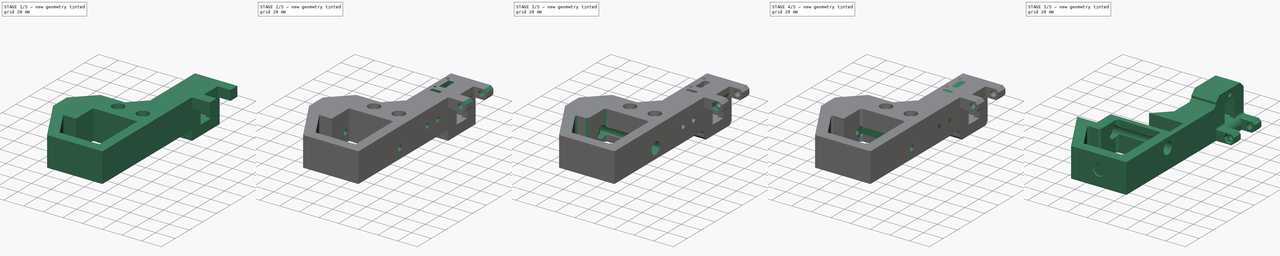
[diagram: build sequence overview — one tinted view per stage of 5, left to right]
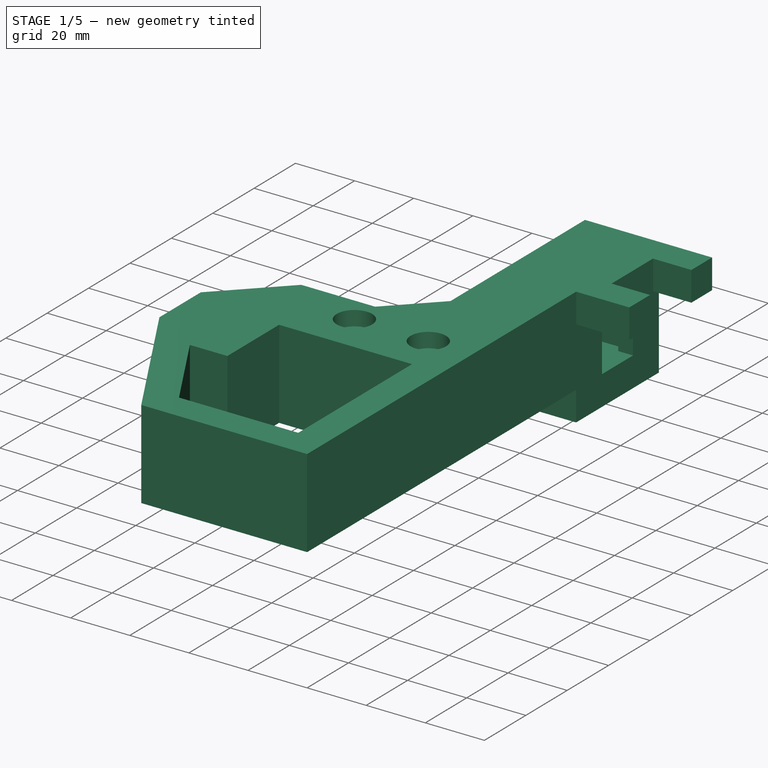
[diagram: stage 1 of 5 — iso view after this stage's code; geometry added in this stage tinted green]
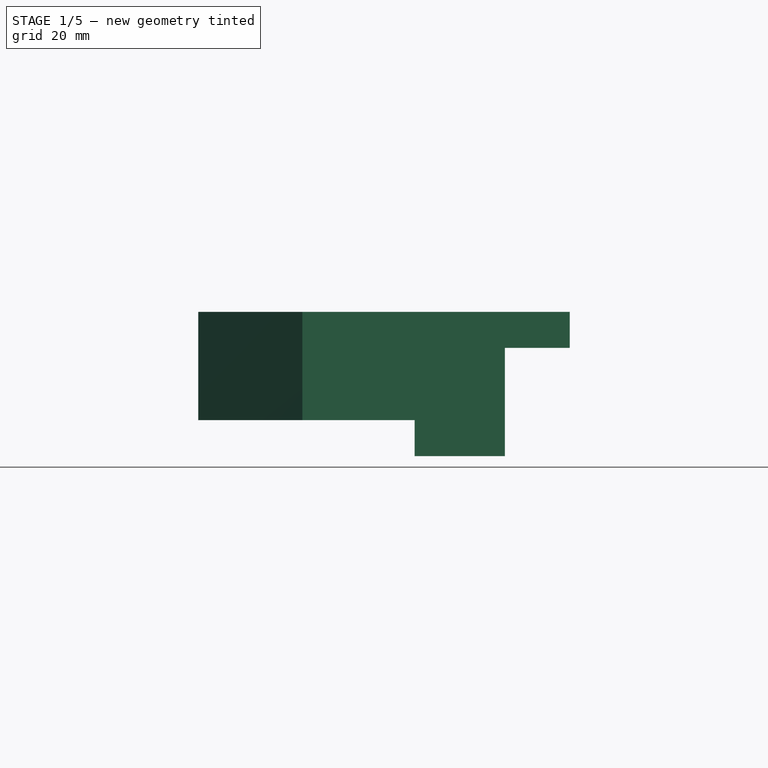
[diagram: stage 1 of 5 — front view after this stage's code; geometry added in this stage tinted green]
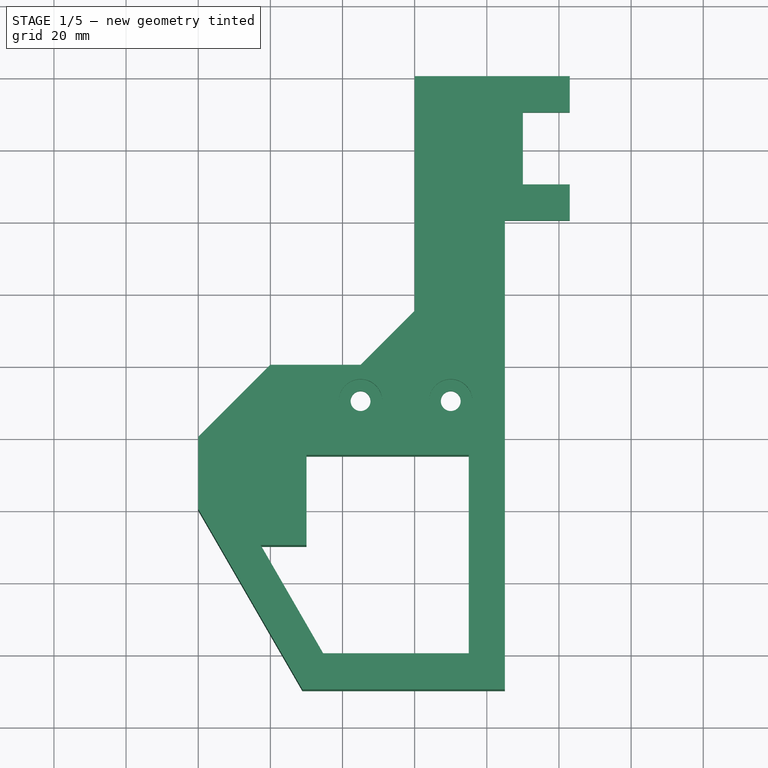
[diagram: stage 1 of 5 — top view after this stage's code; geometry added in this stage tinted green]
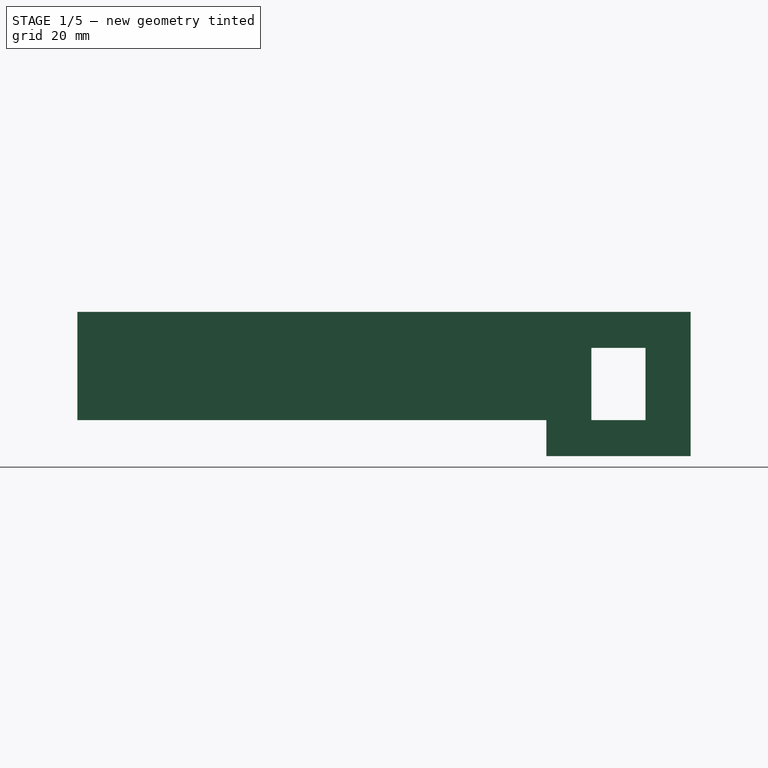
[diagram: stage 1 of 5 — right view after this stage's code; geometry added in this stage tinted green]
FCSTD DOCUMENT  (FreeCAD 0.20R29603 (Git))
Label: front-right-leg
License: All rights reserved
LicenseURL: http://en.wikipedia.org/wiki/All_rights_reserved
objects: Sketcher::SketchObject×25, PartDesign::Pocket×22, PartDesign::Plane×15, PartDesign::Chamfer×6, PartDesign::Pad×5, PartDesign::Fillet×5, PartDesign::Mirrored×1, PartDesign::Body×1
note: 118 computed .brp shape members not serialized (recipe doc carries the construction recipe); baked Part::Feature solids carry a one-line shape summary decoded from their .brp

FEATURE [Sketcher::SketchObject] Sketch
  FullyConstrained = true
  MapMode = 5
  Support = -> [XY_Plane]
  sketch-geometry (24):
    g0: LineSegment StartX=0 StartY=0 StartZ=0 EndX=20 EndY=20 EndZ=0
    g1: LineSegment StartX=85 StartY=60 StartZ=0 EndX=85 EndY=-70 EndZ=0
    g2: LineSegment StartX=85 StartY=-70 StartZ=0 EndX=28.8675 EndY=-70 EndZ=0
    g3: LineSegment StartX=28.8675 StartY=-70 StartZ=0 EndX=0 EndY=-20 EndZ=0
    g4: LineSegment StartX=0 StartY=-20 StartZ=0 EndX=0 EndY=0 EndZ=0
    g5: LineSegment StartX=17.3205 StartY=-30 StartZ=0 EndX=34.641 EndY=-60 EndZ=0
    g6: LineSegment StartX=34.641 StartY=-60 StartZ=0 EndX=75 EndY=-60 EndZ=0
    g7: LineSegment StartX=75 StartY=-60 StartZ=0 EndX=75 EndY=-5 EndZ=0
    g8: LineSegment StartX=60 StartY=35 StartZ=0 EndX=60 EndY=100 EndZ=0
    g9: LineSegment StartX=60 StartY=100 StartZ=0 EndX=103 EndY=100 EndZ=0
    g10: LineSegment StartX=103 StartY=100 StartZ=0 EndX=103 EndY=90 EndZ=0
    g11: LineSegment StartX=103 StartY=90 StartZ=0 EndX=90 EndY=90 EndZ=0
    g12: LineSegment StartX=90 StartY=90 StartZ=0 EndX=90 EndY=70 EndZ=0
    g13: LineSegment StartX=90 StartY=70 StartZ=0 EndX=103 EndY=70 EndZ=0
    g14: LineSegment StartX=103 StartY=70 StartZ=0 EndX=103 EndY=60 EndZ=0
    g15: LineSegment StartX=103 StartY=60 StartZ=0 EndX=85 EndY=60 EndZ=0
    g16: Circle CenterX=70 CenterY=10 CenterZ=0 NormalX=0 NormalY=0 NormalZ=1 AngleXU=0 Radius=2.75
    g17: Circle CenterX=45 CenterY=10 CenterZ=0 NormalX=0 NormalY=0 NormalZ=1 AngleXU=0 Radius=2.75
    g18: LineSegment StartX=85 StartY=10 StartZ=0 EndX=10 EndY=10 EndZ=0
    g19: LineSegment StartX=17.3205 StartY=-30 StartZ=0 EndX=30 EndY=-30 EndZ=0
    g20: LineSegment StartX=30 StartY=-30 StartZ=0 EndX=30 EndY=-5 EndZ=0
    g21: LineSegment StartX=30 StartY=-5 StartZ=0 EndX=75 EndY=-5 EndZ=0
    g22: LineSegment StartX=20 StartY=20 StartZ=0 EndX=45 EndY=20 EndZ=0
    g23: LineSegment StartX=45 StartY=20 StartZ=0 EndX=60 EndY=35 EndZ=0
  constraints (72):
    c: Coincident(g-1,g0)
    c: Coincident(g1,g2)
    c: Coincident(g2,g3)
    c: Coincident(g3,g4)
    c: Coincident(g4,g0)
    c: Vertical(g4)
    c: Vertical(g1)
    c: Horizontal(g2)
    c: DistanceY(g4,g4) = 20
    c: DistanceY(g2,g3) = 50
    c: Angle(g3,g4) = 2.61799
    c: DistanceX(g0,g1) = 85
    c: Angle(g4,g0) = 2.35619
    c: Coincident(g5,g6)
    c: Horizontal(g6)
    c: Coincident(g6,g7)
    c: Vertical(g7)
    c: Parallel(g5,g3)
    c: Distance(g5,g3) = 10
    c: Distance(g6,g2) = 10
    c: Distance(g7,g1) = 10
    c: Vertical(g8)
    c: Coincident(g8,g9)
    c: Horizontal(g9)
    c: Coincident(g9,g10)
    c: Vertical(g10)
    c: Coincident(g10,g11)
    c: Horizontal(g11)
    c: Coincident(g11,g12)
    c: Vertical(g12)
    c: Coincident(g12,g13)
    c: Horizontal(g13)
    c: Coincident(g13,g14)
    c: Vertical(g14)
    c: Coincident(g14,g15)
    c: Horizontal(g15)
    c: PointOnObject(g13,g10)
    c: Distance(g15,g8) = 25
    c: Distance(g15) = 18
    c: Distance(g10,g13) = 20
    c: Distance(g10) = 10
    c: Distance(g14) = 10
    c: PointOnObject(g18,g1)
    c: PointOnObject(g18,g0)
    c: Horizontal(g18)
    c: Distance(g0,g18) = 10
    c: Radius(g16) = 2.75
    c: Radius(g17) = 2.75
    c: Distance(g16,g1) = 15
    c: Distance(g17,g1) = 40
    c: PointOnObject(g17,g18)
    c: PointOnObject(g16,g18)
    c: Coincident(g5,g19)
    c: Coincident(g19,g20)
    c: Vertical(g20)
    c: Coincident(g20,g21)
    c: Horizontal(g21)
    c: Coincident(g21,g7)
    c: Distance(g21) = 45
    c: Distance(g20) = 25
    c: Horizontal(g19)
    c: Distance(g0,g21) = 5
    c: Coincident(g15,g1)
    c: DistanceY(g0,g8) = 100
    c: Horizontal(g22)
    c: Coincident(g22,g23)
    c: Coincident(g0,g22)
    c: Coincident(g8,g23)
    c: Parallel(g0,g23)
    c: DistanceY(g18,g0) = 10
    c: DistanceY(g8,g1) = 25
    c: DistanceX(g0,g12) = 90
FEATURE [PartDesign::Pad] Pad
  AllowMultiFace = false
  Direction = (1,1,1)
  Length = 30
  Length2 = 100
  Profile = -> Sketch
  Refine = true
  Type = 0
FEATURE [Sketcher::SketchObject] Sketch001
  FullyConstrained = true
  MapMode = 5
  Support = -> [XY_Plane]
  sketch-geometry (8):
    g0: LineSegment StartX=60 StartY=100 StartZ=0 EndX=103 EndY=100 EndZ=0
    g1: LineSegment StartX=103 StartY=100 StartZ=0 EndX=103 EndY=90 EndZ=0
    g2: LineSegment StartX=103 StartY=90 StartZ=0 EndX=90 EndY=90 EndZ=0
    g3: LineSegment StartX=90 StartY=70 StartZ=0 EndX=103 EndY=70 EndZ=0
    g4: LineSegment StartX=103 StartY=70 StartZ=0 EndX=103 EndY=60 EndZ=0
    g5: LineSegment StartX=103 StartY=60 StartZ=0 EndX=60 EndY=60 EndZ=0
    g6: LineSegment StartX=60 StartY=60 StartZ=0 EndX=60 EndY=100 EndZ=0
    g7: LineSegment StartX=90 StartY=90 StartZ=0 EndX=90 EndY=70 EndZ=0
  constraints (24):
    c: Horizontal(g0)
    c: Coincident(g0,g1)
    c: Vertical(g1)
    c: Coincident(g1,g2)
    c: Horizontal(g2)
    c: Horizontal(g3)
    c: Coincident(g3,g4)
    c: Vertical(g4)
    c: Coincident(g4,g5)
    c: Horizontal(g5)
    c: Coincident(g5,g6)
    c: Vertical(g6)
    c: Coincident(g0,g6)
    c: PointOnObject(g0,g4)
    c: DistanceX(g-1,g0) = 60
    c: DistanceY(g6,g6) = 40
    c: DistanceX(g0,g0) = 43
    c: DistanceY(g1,g1) = 10
    c: DistanceY(g4,g4) = 10
    c: DistanceY(g-1,g5) = 60
    c: Vertical(g7)
    c: Coincident(g2,g7)
    c: Coincident(g3,g7)
    c: DistanceX(g-1,g3) = 90
FEATURE [PartDesign::Pad] Pad001
  AllowMultiFace = false
  BaseFeature = -> Pad
  Direction = (1,1,1)
  Length = 10
  Length2 = 100
  Profile = -> Sketch001
  Refine = true
  Reversed = true
  Type = 0
FEATURE [Sketcher::SketchObject] Sketch019
  FullyConstrained = true
  MapMode = 5
  Support = -> [XY_Plane]
  sketch-geometry (4):
    g0: LineSegment StartX=85 StartY=100 StartZ=0 EndX=110 EndY=100 EndZ=0
    g1: LineSegment StartX=110 StartY=100 StartZ=0 EndX=110 EndY=60 EndZ=0
    g2: LineSegment StartX=110 StartY=60 StartZ=0 EndX=85 EndY=60 EndZ=0
    g3: LineSegment StartX=85 StartY=60 StartZ=0 EndX=85 EndY=100 EndZ=0
  constraints (12):
    c: Coincident(g0,g1)
    c: Coincident(g1,g2)
    c: Coincident(g2,g3)
    c: Coincident(g3,g0)
    c: Horizontal(g0)
    c: Horizontal(g2)
    c: Vertical(g1)
    c: Vertical(g3)
    c: DistanceX(g0,g0) = 25
    c: DistanceY(g1,g1) = 40
    c: DistanceX(g-1,g2) = 85
    c: DistanceY(g-1,g2) = 60
FEATURE [PartDesign::Pocket] Pocket016
  AllowMultiFace = false
  BaseFeature = -> Pad001
  Direction = (1,1,1)
  Length = 10
  Length2 = 20
  Profile = -> Sketch019
  Type = 4
FEATURE [PartDesign::Plane] DatumPlane003  label="Datum"
  Length = 157.503
  MapMode = 5
  Placement = pos=(0,0,30) rot=(0,0,1;0rad)
  ResizeMode = 0
  Support = -> [Pocket016]
  Width = 199.503
FEATURE [Sketcher::SketchObject] Sketch002
  FullyConstrained = true
  MapMode = 5
  Placement = pos=(0,0,30) rot=(0,0,1;0rad)
  Support = -> [DatumPlane003]
  sketch-geometry (2):
    g0: Circle CenterX=45 CenterY=10 CenterZ=0 NormalX=0 NormalY=0 NormalZ=1 AngleXU=0 Radius=6
    g1: Circle CenterX=70 CenterY=10 CenterZ=0 NormalX=0 NormalY=0 NormalZ=1 AngleXU=0 Radius=6
  constraints (6):
    c: Radius(g0) = 6
    c: Radius(g1) = 6
    c: DistanceX(g-1,g0) = 45
    c: DistanceX(g-1,g1) = 70
    c: DistanceY(g-1,g0) = 10
    c: DistanceY(g-1,g1) = 10
FEATURE [PartDesign::Pocket] Pocket
  AllowMultiFace = false
  BaseFeature = -> Pocket016
  Direction = (1,1,1)
  Length = 5
  Length2 = 100
  Profile = -> Sketch002
  Refine = true
  Type = 0
FEATURE [PartDesign::Plane] DatumPlane004
  Length = 195.417
  MapMode = 5
  Placement = pos=(60,0,0) rot=(0.57735,-0.57735,-0.57735;2.0944rad)
  ResizeMode = 0
  Support = -> [Pocket]
  Width = 120.417
FEATURE [Sketcher::SketchObject] Sketch003
  FullyConstrained = true
  MapMode = 5
  Placement = pos=(60,0,0) rot=(0.57735,-0.57735,-0.57735;2.0944rad)
  Support = -> [DatumPlane004]
  sketch-geometry (4):
    g0: LineSegment StartX=-90 StartY=20 StartZ=0 EndX=-90 EndY=0 EndZ=0
    g1: LineSegment StartX=-90 StartY=0 StartZ=0 EndX=-70 EndY=0 EndZ=0
    g2: LineSegment StartX=-70 StartY=0 StartZ=0 EndX=-70 EndY=20 EndZ=0
    g3: LineSegment StartX=-70 StartY=20 StartZ=0 EndX=-90 EndY=20 EndZ=0
  constraints (12):
    c: PointOnObject(g0,g-1)
    c: Vertical(g0)
    c: Coincident(g0,g1)
    c: PointOnObject(g1,g-1)
    c: Coincident(g1,g2)
    c: Vertical(g2)
    c: Coincident(g2,g3)
    c: Coincident(g3,g0)
    c: Horizontal(g3)
    c: Distance(g0) = 20
    c: Distance(g3) = 20
    c: Distance(g1,g-1) = 70
FEATURE [PartDesign::Pocket] Pocket001
  AllowMultiFace = false
  BaseFeature = -> Pocket
  Direction = (1,1,1)
  Length = 20
  Length2 = 100
  Profile = -> Sketch003
  Refine = true
  Type = 0
FEATURE [Sketcher::SketchObject] Sketch015
  ExternalGeometry = -> [Pocket001]
  FullyConstrained = true
  MapMode = 5
  Support = -> [XY_Plane]
  sketch-geometry (7):
    g0: LineSegment StartX=80 StartY=20 StartZ=0 EndX=80 EndY=0 EndZ=0
    g1: LineSegment StartX=80 StartY=0 StartZ=0 EndX=20 EndY=0 EndZ=0
    g2: LineSegment StartX=20 StartY=0 StartZ=0 EndX=20 EndY=-20 EndZ=0
    g3: LineSegment StartX=20 StartY=-20 StartZ=0 EndX=0 EndY=-20 EndZ=0
    g4: LineSegment StartX=0 StartY=-20 StartZ=0 EndX=0 EndY=0 EndZ=0
    g5: LineSegment StartX=0 StartY=0 StartZ=0 EndX=20 EndY=20 EndZ=0
    g6: LineSegment StartX=20 StartY=20 StartZ=0 EndX=80 EndY=20 EndZ=0
  constraints (21):
    c: PointOnObject(g0,g-1)
    c: Vertical(g0)
    c: Coincident(g0,g1)
    c: PointOnObject(g1,g-1)
    c: Coincident(g1,g2)
    c: Vertical(g2)
    c: Coincident(g2,g3)
    c: PointOnObject(g3,g-2)
    c: Horizontal(g3)
    c: Coincident(g3,g4)
    c: PointOnObject(g4,g-1)
    c: Vertical(g4)
    c: Coincident(g4,g5)
    c: Coincident(g5,g6)
    c: Horizontal(g6)
    c: Coincident(g6,g0)
    c: DistanceX(g4,g0) = 80
    c: DistanceX(g3,g3) = 20
    c: DistanceY(g2,g2) = 20
    c: DistanceY(g0,g0) = 20
    c: PointOnObject(g5,g2)
FEATURE [PartDesign::Pocket] Pocket012
  AllowMultiFace = false
  BaseFeature = -> Pocket001
  Direction = (1,1,1)
  Length = 20
  Length2 = 100
  Profile = -> Sketch015
  Reversed = true
  Type = 0
FEATURE [PartDesign::Plane] DatumPlane006
  Length = 150.054
  MapMode = 5
  Placement = pos=(0,100,0) rot=(0,0.707107,0.707107;3.14159rad)
  ResizeMode = 0
  Support = -> [Pocket012]
  Width = 117.054
FEATURE [Sketcher::SketchObject] Sketch007
  FullyConstrained = true
  MapMode = 2
  Placement = pos=(0,100,0) rot=(0,0.707107,0.707107;3.14159rad)
  Support = -> [DatumPlane006]
  sketch-geometry (1):
    g0: Circle CenterX=-70 CenterY=10 CenterZ=0 NormalX=0 NormalY=0 NormalZ=1 AngleXU=0 Radius=2.75
  constraints (3):
    c: Radius(g0) = 2.75
    c: Distance(g0,g-2) = 70
    c: Distance(g0,g-1) = 10
FEATURE [PartDesign::Pocket] Pocket005  label="rail-mount-thru"
  AllowMultiFace = false
  BaseFeature = -> Pocket012
  Direction = (1,1,1)
  Length = 10
  Length2 = 100
  Profile = -> Sketch007
  Refine = true
  Type = 0
FEATURE [Sketcher::SketchObject] Sketch009
  FullyConstrained = true
  MapMode = 5
  Placement = pos=(60,0,0) rot=(0.57735,-0.57735,-0.57735;2.0944rad)
  Support = -> [DatumPlane004]
  sketch-geometry (4):
    g0: LineSegment StartX=-87.5 StartY=20 StartZ=0 EndX=-72.5 EndY=20 EndZ=0
    g1: LineSegment StartX=-72.5 StartY=20 StartZ=0 EndX=-72.5 EndY=0 EndZ=0
    g2: LineSegment StartX=-72.5 StartY=0 StartZ=0 EndX=-87.5 EndY=0 EndZ=0
    g3: LineSegment StartX=-87.5 StartY=0 StartZ=0 EndX=-87.5 EndY=20 EndZ=0
  constraints (12):
    c: Coincident(g0,g1)
    c: Coincident(g1,g2)
    c: Coincident(g2,g3)
    c: Coincident(g3,g0)
    c: Horizontal(g0)
    c: Horizontal(g2)
    c: Vertical(g1)
    c: Vertical(g3)
    c: Distance(g0,g2) = 20
    c: DistanceX(g0,g0) = 15
    c: DistanceX(g2,g-1) = 87.5
    c: PointOnObject(g1,g-1)
FEATURE [PartDesign::Pocket] Pocket007
  AllowMultiFace = false
  BaseFeature = -> Pocket005
  Direction = (1,1,1)
  Length = 25
  Length2 = 100
  Profile = -> Sketch009
  Refine = true
  Type = 0
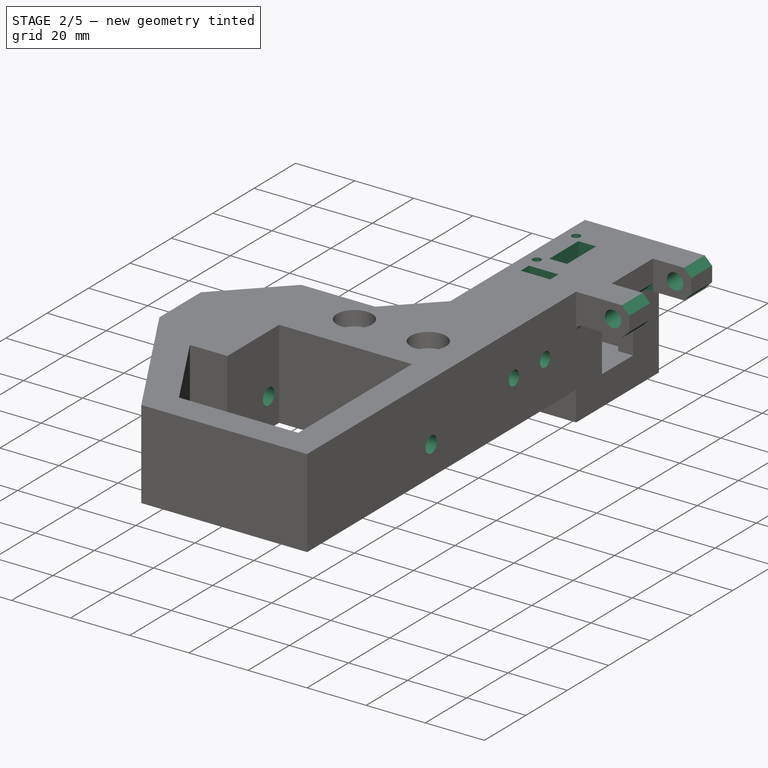
[diagram: stage 2 of 5 — iso view after this stage's code; geometry added in this stage tinted green]
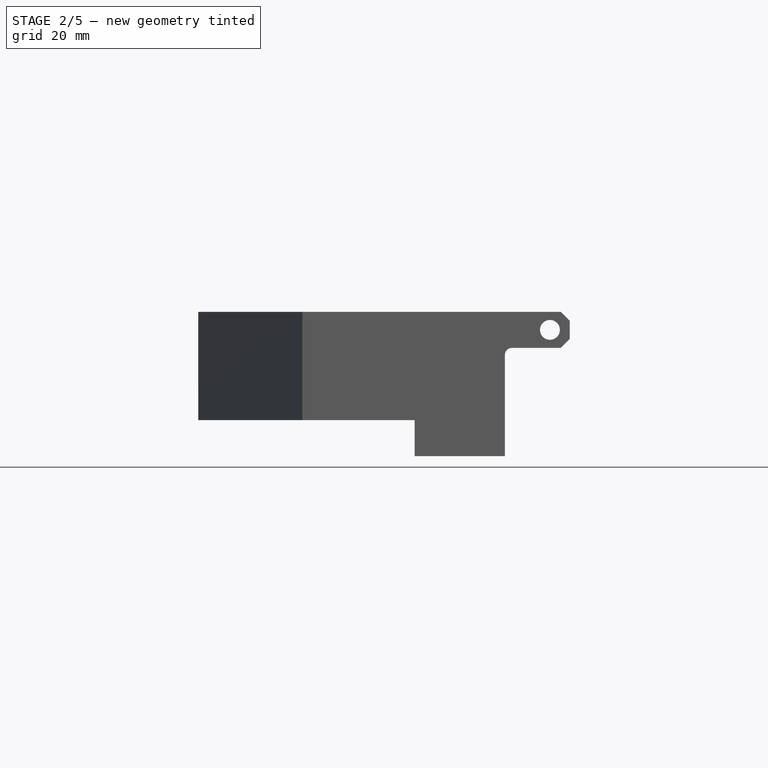
[diagram: stage 2 of 5 — front view after this stage's code; geometry added in this stage tinted green]
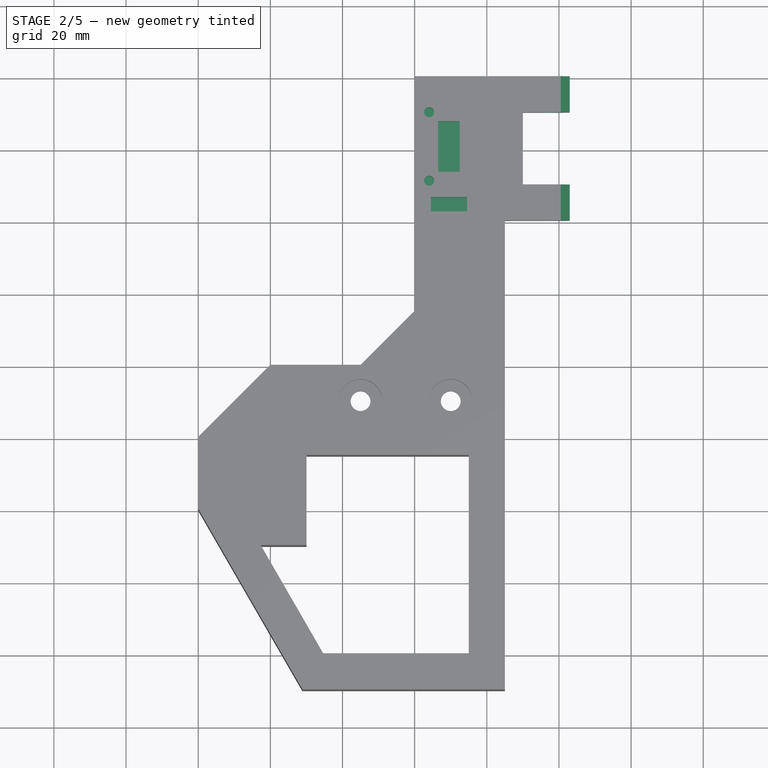
[diagram: stage 2 of 5 — top view after this stage's code; geometry added in this stage tinted green]
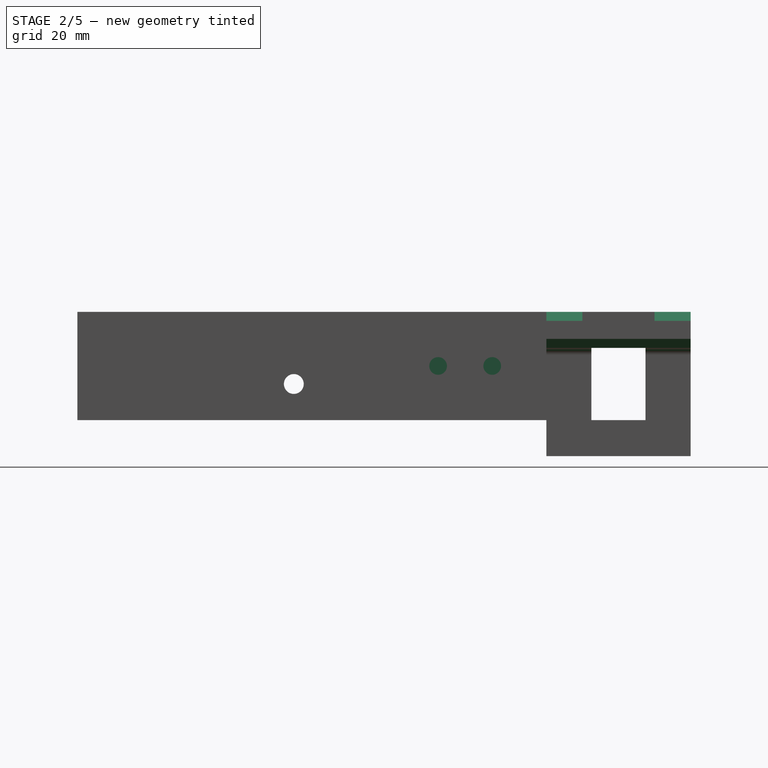
[diagram: stage 2 of 5 — right view after this stage's code; geometry added in this stage tinted green]
FEATURE [Sketcher::SketchObject] Sketch010
  FullyConstrained = true
  MapMode = 5
  Placement = pos=(0,0,0) rot=(0.57735,0.57735,0.57735;2.0944rad)
  Support = -> [YZ_Plane]
  sketch-geometry (1):
    g0: Circle CenterX=-10 CenterY=10 CenterZ=0 NormalX=0 NormalY=0 NormalZ=1 AngleXU=0 Radius=2.75
  constraints (3):
    c: Radius(g0) = 2.75
    c: DistanceY(g-1,g0) = 10
    c: DistanceX(g0,g-1) = 10
FEATURE [PartDesign::Pocket] Pocket008  label="front-rail-mount-thru"
  AllowMultiFace = false
  BaseFeature = -> Pocket007
  Direction = (1,1,1)
  Length = 85
  Length2 = 100
  Offset = 27
  Profile = -> Sketch010
  Refine = true
  Reversed = true
  Type = 0
FEATURE [PartDesign::Plane] DatumPlane005
  Length = 157.503
  MapMode = 2
  ResizeMode = 0
  Support = -> [Pocket008]
  Width = 199.503
FEATURE [Sketcher::SketchObject] Sketch011
  FullyConstrained = true
  MapMode = 5
  Support = -> [DatumPlane005]
  sketch-geometry (1):
    g0: Circle CenterX=-10 CenterY=10 CenterZ=0 NormalX=0 NormalY=0 NormalZ=1 AngleXU=0 Radius=6
  constraints (3):
    c: Radius(g0) = 6
    c: DistanceX(g0,g-1) = 10
    c: DistanceY(g-1,g0) = 10
FEATURE [PartDesign::Pocket] Pocket009  label="front-rail-mount-countersink"
  AllowMultiFace = false
  BaseFeature = -> Pocket008
  Direction = (1,1,1)
  Length = 60
  Length2 = 35
  Profile = -> Sketch011
  Refine = true
  Type = 0
FEATURE [Sketcher::SketchObject] Sketch017
  FullyConstrained = true
  MapMode = 5
  Placement = pos=(0,0,30) rot=(0,0,1;0rad)
  Support = -> [DatumPlane003]
  sketch-geometry (11):
    g0: LineSegment StartX=64.5 StartY=62.5 StartZ=0 EndX=74.5 EndY=62.5 EndZ=0
    g1: LineSegment StartX=74.5 StartY=62.5 StartZ=0 EndX=74.5 EndY=66.5 EndZ=0
    g2: LineSegment StartX=74.5 StartY=66.5 StartZ=0 EndX=64.5 EndY=66.5 EndZ=0
    g3: LineSegment StartX=64.5 StartY=66.5 StartZ=0 EndX=64.5 EndY=62.5 EndZ=0
    g4: Circle CenterX=64 CenterY=90 CenterZ=0 NormalX=0 NormalY=0 NormalZ=1 AngleXU=0 Radius=1.375
    g5: Circle CenterX=64 CenterY=71 CenterZ=0 NormalX=0 NormalY=0 NormalZ=1 AngleXU=0 Radius=1.375
    g6: LineSegment StartX=66.5 StartY=87.5 StartZ=0 EndX=72.5 EndY=87.5 EndZ=0
    g7: LineSegment StartX=72.5 StartY=87.5 StartZ=0 EndX=72.5 EndY=73.5 EndZ=0
    g8: LineSegment StartX=72.5 StartY=73.5 StartZ=0 EndX=66.5 EndY=73.5 EndZ=0
    g9: LineSegment StartX=66.5 StartY=73.5 StartZ=0 EndX=66.5 EndY=87.5 EndZ=0
    g10: LineSegment StartX=64 StartY=90 StartZ=0 EndX=64 EndY=71 EndZ=0
  constraints (32):
    c: Coincident(g0,g1)
    c: Coincident(g1,g2)
    c: Coincident(g2,g3)
    c: Coincident(g3,g0)
    c: Horizontal(g0)
    c: Horizontal(g2)
    c: Vertical(g1)
    c: Vertical(g3)
    c: Diameter(g4) = 2.75
    c: Diameter(g5) = 2.75
    c: Coincident(g6,g7)
    c: Coincident(g7,g8)
    c: Coincident(g8,g9)
    c: Coincident(g9,g6)
    c: Horizontal(g6)
    c: Horizontal(g8)
    c: Vertical(g7)
    c: Vertical(g9)
    c: DistanceY(g-1,g4) = 90
    c: DistanceX(g-1,g4) = 64
    c: Coincident(g10,g4)
    c: Coincident(g10,g5)
    c: Vertical(g10)
    c: DistanceY(g10,g10) = 19
    c: DistanceY(g3,g3) = 4
    c: DistanceX(g0,g0) = 10
    c: DistanceY(g2,g4) = 23.5
    c: DistanceX(g4,g2) = 0.5
    c: DistanceX(g4,g6) = 2.5
    c: DistanceX(g6,g6) = 6
    c: DistanceY(g6,g4) = 2.5
    c: DistanceY(g5,g8) = 2.5
FEATURE [PartDesign::Pocket] Pocket014
  AllowMultiFace = false
  BaseFeature = -> Pocket009
  Direction = (1,1,1)
  Length = 7
  Length2 = 100
  Profile = -> Sketch017
  Type = 0
FEATURE [Sketcher::SketchObject] Sketch018
  FullyConstrained = true
  MapMode = 5
  Placement = pos=(85,0,0) rot=(0.57735,0.57735,0.57735;2.0944rad)
  sketch-geometry (3):
    g0: Circle CenterX=45 CenterY=15 CenterZ=0 NormalX=0 NormalY=0 NormalZ=1 AngleXU=0 Radius=2.45
    g1: Circle CenterX=30 CenterY=15 CenterZ=0 NormalX=0 NormalY=0 NormalZ=1 AngleXU=0 Radius=2.45
    g2: LineSegment StartX=45 StartY=15 StartZ=0 EndX=30 EndY=15 EndZ=0
  constraints (8):
    c: Diameter(g0) = 4.9
    c: Diameter(g1) = 4.9
    c: Coincident(g2,g0)
    c: Coincident(g2,g1)
    c: Horizontal(g2)
    c: Distance(g2) = 15
    c: Distance(g-1,g2) = 15
    c: DistanceX(g-1,g1) = 30
FEATURE [PartDesign::Pocket] Pocket015
  AllowMultiFace = false
  BaseFeature = -> Pocket014
  Direction = (1,1,1)
  Length = 15
  Length2 = 100
  Profile = -> Sketch018
  Refine = true
  Type = 0
FEATURE [PartDesign::Plane] DatumPlane
  Length = 150.054
  MapMode = 5
  Placement = pos=(0,100,0) rot=(0,0.707107,0.707107;3.14159rad)
  ResizeMode = 0
  Support = -> [Pocket015]
  Width = 117.054
FEATURE [Sketcher::SketchObject] Sketch020
  FullyConstrained = true
  MapMode = 5
  Placement = pos=(0,100,0) rot=(0,0.707107,0.707107;3.14159rad)
  Support = -> [DatumPlane]
  sketch-geometry (1):
    g0: Circle CenterX=-97.5 CenterY=25 CenterZ=0 NormalX=0 NormalY=0 NormalZ=1 AngleXU=0 Radius=2.75
  constraints (3):
    c: Diameter(g0) = 5.5
    c: DistanceX(g0,g-1) = 97.5
    c: DistanceY(g-1,g0) = 25
FEATURE [PartDesign::Pocket] Pocket017
  AllowMultiFace = false
  BaseFeature = -> Pocket015
  Direction = (1,1,1)
  Length = 40
  Length2 = 100
  Profile = -> Sketch020
  Type = 0
FEATURE [Sketcher::SketchObject] Sketch021
  FullyConstrained = true
  MapMode = 5
  Placement = pos=(0,100,0) rot=(0,0.707107,0.707107;3.14159rad)
  Support = -> [DatumPlane]
  sketch-geometry (1):
    g0: Circle CenterX=-70 CenterY=10 CenterZ=0 NormalX=0 NormalY=0 NormalZ=1 AngleXU=0 Radius=6
  constraints (3):
    c: Diameter(g0) = 12
    c: DistanceY(g-1,g0) = 10
    c: DistanceX(g0,g-1) = 70
FEATURE [PartDesign::Pocket] Pocket018
  AllowMultiFace = false
  BaseFeature = -> Pocket017
  Direction = (1,1,1)
  Length = 5
  Length2 = 100
  Profile = -> Sketch021
  Type = 0
FEATURE [PartDesign::Fillet] Fillet001
  Base = -> Pocket018 [Edge78,Edge84]
  BaseFeature = -> Pocket018
  Radius = 2
  SupportTransform = false
  UseAllEdges = false
FEATURE [PartDesign::Chamfer] Chamfer
  Angle = 45
  Base = -> Fillet001 [Edge105,Edge49,Edge48,Edge103,Edge109]
  BaseFeature = -> Fillet001
  ChamferType = 0
  FlipDirection = false
  Size = 2.5
  Size2 = 1
  SupportTransform = false
  UseAllEdges = false
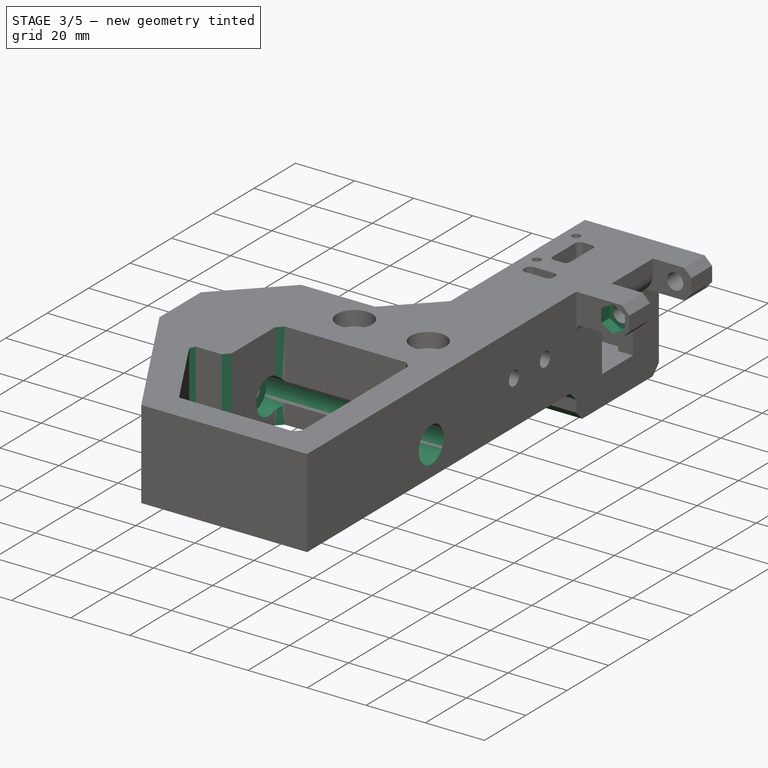
[diagram: stage 3 of 5 — iso view after this stage's code; geometry added in this stage tinted green]
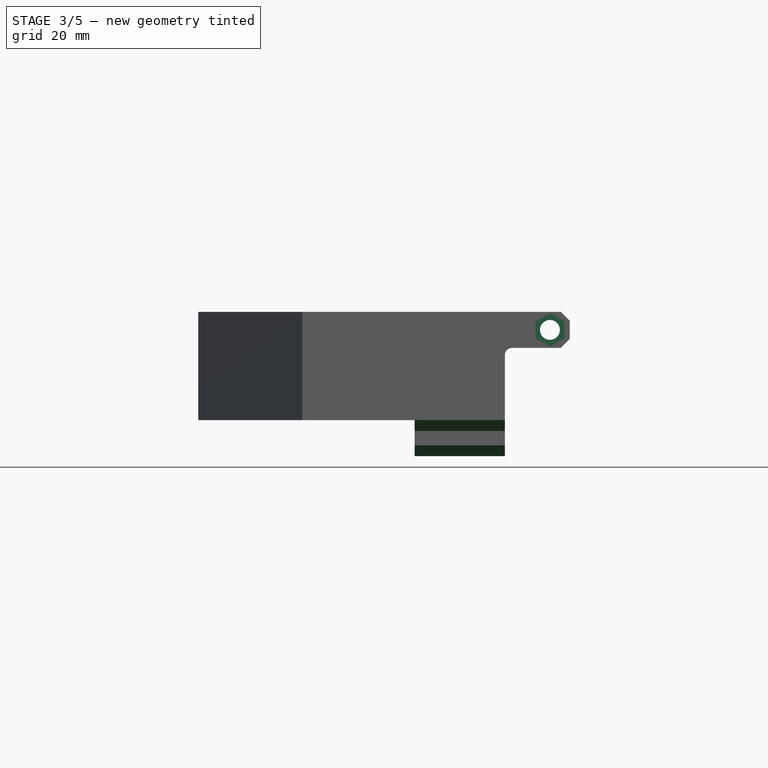
[diagram: stage 3 of 5 — front view after this stage's code; geometry added in this stage tinted green]
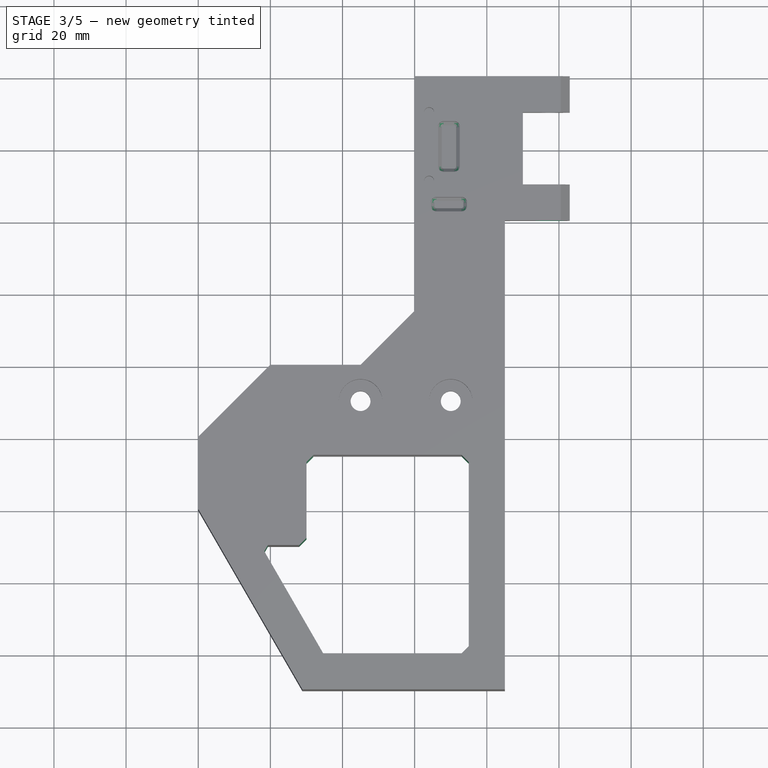
[diagram: stage 3 of 5 — top view after this stage's code; geometry added in this stage tinted green]
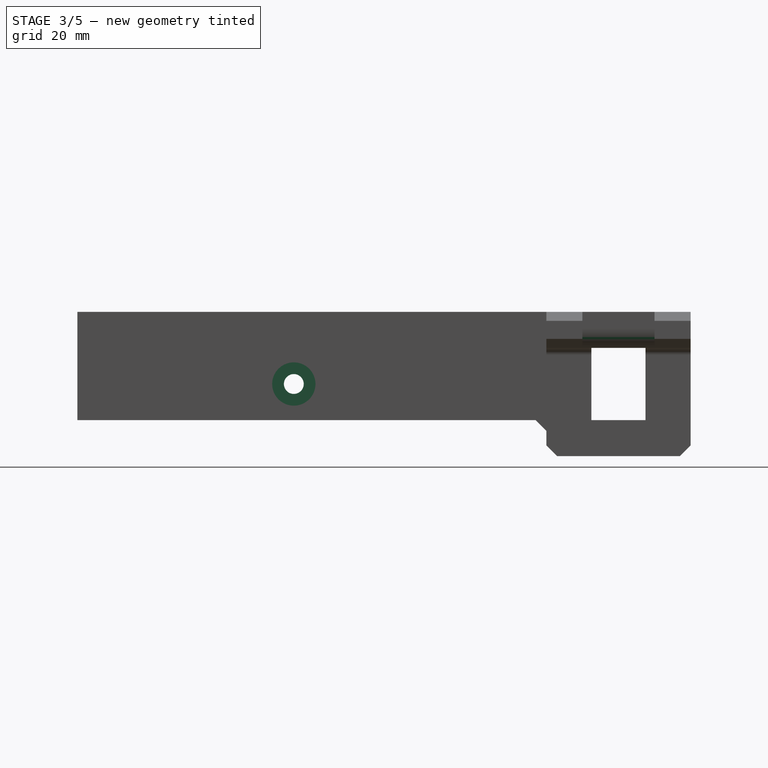
[diagram: stage 3 of 5 — right view after this stage's code; geometry added in this stage tinted green]
FEATURE [PartDesign::Fillet] Fillet
  Base = -> Chamfer [Edge101]
  BaseFeature = -> Chamfer
  Radius = 7
  SupportTransform = false
  UseAllEdges = false
FEATURE [PartDesign::Plane] DatumPlane007
  Length = 150.054
  MapMode = 5
  Placement = pos=(0,60,0) rot=(1,0,0;1.5708rad)
  ResizeMode = 0
  Support = -> [Fillet]
  Width = 117.054
FEATURE [Sketcher::SketchObject] Sketch022
  FullyConstrained = true
  MapMode = 5
  Placement = pos=(0,60,0) rot=(1,0,0;1.5708rad)
  Support = -> [DatumPlane007]
  sketch-geometry (7):
    g0: LineSegment StartX=101.5 StartY=22.6906 StartZ=0 EndX=101.5 EndY=27.3094 EndZ=0
    g1: LineSegment StartX=101.5 StartY=27.3094 StartZ=0 EndX=97.5 EndY=29.6188 EndZ=0
    g2: LineSegment StartX=97.5 StartY=29.6188 StartZ=0 EndX=93.5 EndY=27.3094 EndZ=0
    g3: LineSegment StartX=93.5 StartY=27.3094 StartZ=0 EndX=93.5 EndY=22.6906 EndZ=0
    g4: LineSegment StartX=93.5 StartY=22.6906 StartZ=0 EndX=97.5 EndY=20.3812 EndZ=0
    g5: LineSegment StartX=97.5 StartY=20.3812 StartZ=0 EndX=101.5 EndY=22.6906 EndZ=0
    g6: Circle CenterX=97.5 CenterY=25 CenterZ=0 NormalX=0 NormalY=0 NormalZ=1 AngleXU=0 Radius=4.6188
  constraints (17):
    c: Coincident(g0,g1)
    c: Coincident(g1,g2)
    c: Coincident(g2,g3)
    c: Coincident(g3,g4)
    c: Coincident(g4,g5)
    c: Coincident(g5,g0)
    c: Equal(g0, g1-g5) x5
    c: PointOnObject(g0,g6)
    c: PointOnObject(g1,g6)
    c: PointOnObject(g2,g6)
    c: PointOnObject(g3,g6)
    c: PointOnObject(g4,g6)
    c: PointOnObject(g5,g6)
    c: DistanceY(g-1,g6) = 25
    c: DistanceX(g-1,g6) = 97.5
    c: Vertical(g3)
    c: DistanceX(g2,g0) = 8
FEATURE [PartDesign::Pocket] Pocket019
  AllowMultiFace = false
  BaseFeature = -> Fillet
  Direction = (1,1,1)
  Length = 4
  Length2 = 100
  Profile = -> Sketch022
  Type = 0
FEATURE [PartDesign::Plane] DatumPlane008
  Length = 195.417
  MapMode = 5
  Placement = pos=(85,0,0) rot=(0.57735,0.57735,0.57735;2.0944rad)
  ResizeMode = 0
  Support = -> [Pocket019]
  Width = 120.417
FEATURE [Sketcher::SketchObject] Sketch023
  FullyConstrained = true
  MapMode = 5
  Placement = pos=(85,0,0) rot=(0.57735,0.57735,0.57735;2.0944rad)
  Support = -> [DatumPlane008]
  sketch-geometry (1):
    g0: Circle CenterX=-10 CenterY=10 CenterZ=0 NormalX=0 NormalY=0 NormalZ=1 AngleXU=0 Radius=6
  constraints (3):
    c: Diameter(g0) = 12
    c: DistanceX(g0,g-1) = 10
    c: DistanceY(g-1,g0) = 10
FEATURE [PartDesign::Pocket] Pocket020
  AllowMultiFace = false
  BaseFeature = -> Pocket019
  Direction = (1,1,1)
  Length = 60
  Length2 = 100
  Profile = -> Sketch023
  Type = 0
FEATURE [PartDesign::Chamfer] Chamfer003
  Angle = 45
  Base = -> Pocket020 [Edge151,Edge149,Edge144,Edge143,Edge155,Edge157,Edge152]
  BaseFeature = -> Pocket020
  ChamferType = 0
  FlipDirection = false
  Size = 2
  Size2 = 1
  SupportTransform = false
  UseAllEdges = false
FEATURE [PartDesign::Fillet] Fillet002
  Base = -> Chamfer003 [Edge159,Edge161,Edge156,Edge157,Edge146,Edge149,Edge147,Edge151]
  BaseFeature = -> Chamfer003
  Radius = 1.5
  SupportTransform = false
  UseAllEdges = false
FEATURE [PartDesign::Chamfer] Chamfer004
  Angle = 45
  Base = -> Fillet002 [Edge184,Edge57]
  BaseFeature = -> Fillet002
  ChamferType = 0
  FlipDirection = false
  Size = 1
  Size2 = 1
  SupportTransform = false
  UseAllEdges = false
FEATURE [PartDesign::Chamfer] Chamfer005
  Angle = 45
  Base = -> Chamfer004 [Edge107,Edge237,Edge209]
  BaseFeature = -> Chamfer004
  ChamferType = 0
  FlipDirection = false
  Size = 3
  Size2 = 1
  SupportTransform = false
  UseAllEdges = false
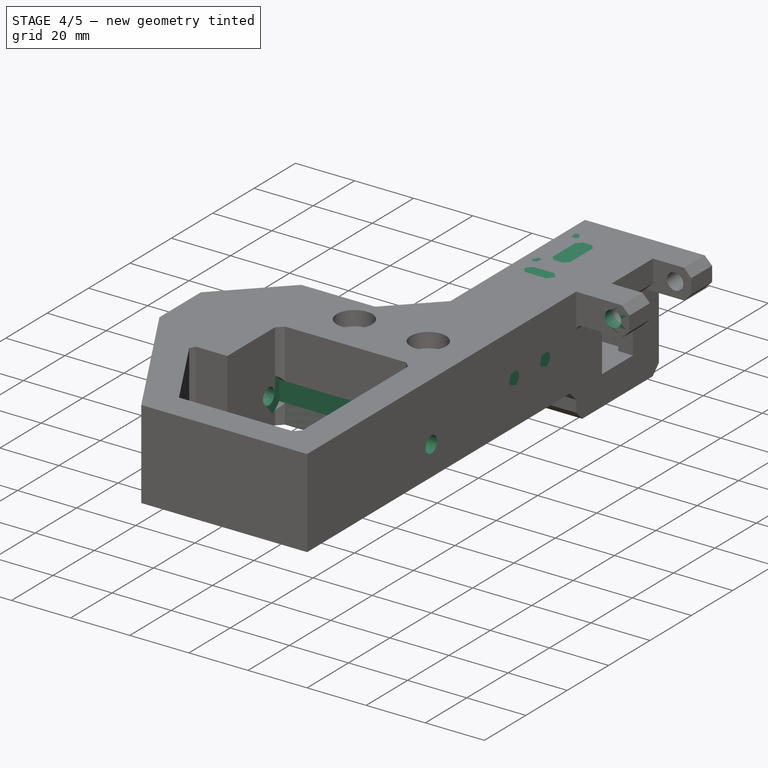
[diagram: stage 4 of 5 — iso view after this stage's code; geometry added in this stage tinted green]
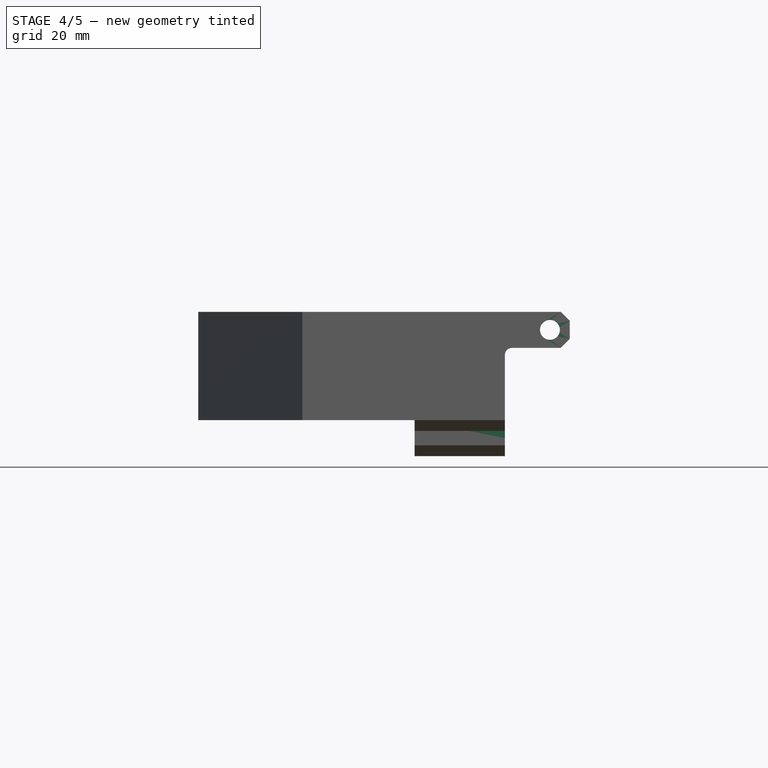
[diagram: stage 4 of 5 — front view after this stage's code; geometry added in this stage tinted green]
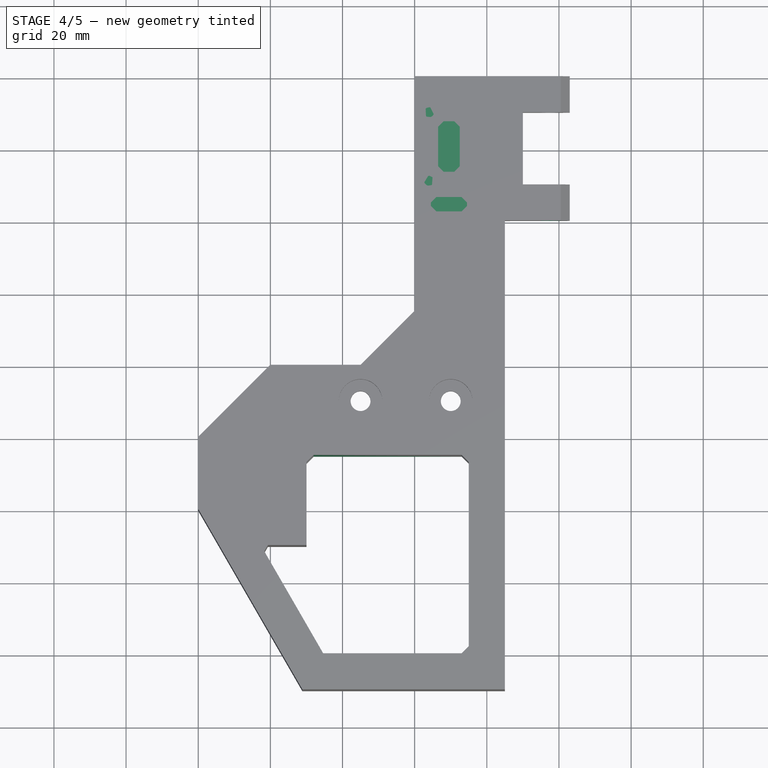
[diagram: stage 4 of 5 — top view after this stage's code; geometry added in this stage tinted green]
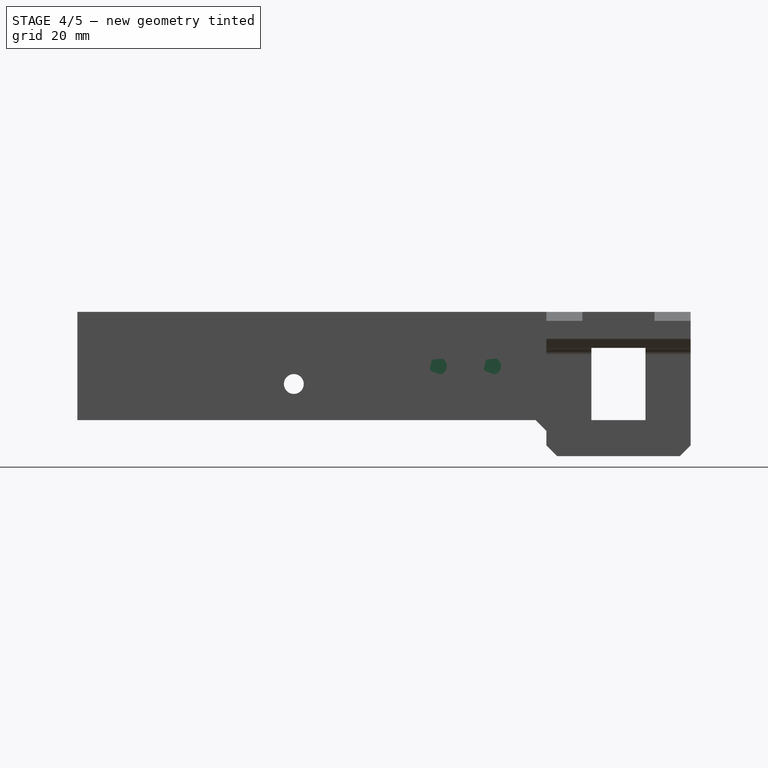
[diagram: stage 4 of 5 — right view after this stage's code; geometry added in this stage tinted green]
FEATURE [PartDesign::Chamfer] Chamfer001
  Angle = 45
  Base = -> Chamfer [Edge86,Edge121]
  BaseFeature = -> Chamfer
  ChamferType = 0
  FlipDirection = false
  Size = 5
  Size2 = 1
  SupportTransform = false
  UseAllEdges = false
FEATURE [PartDesign::Plane] DatumPlane009
  Length = 195.417
  MapMode = 5
  Placement = pos=(85,0,0) rot=(0.57735,0.57735,0.57735;2.0944rad)
  ResizeMode = 0
  Support = -> [Chamfer005]
  Width = 120.417
FEATURE [Sketcher::SketchObject] Sketch024
  FullyConstrained = true
  MapMode = 5
  Placement = pos=(85,0,0) rot=(0.57735,0.57735,0.57735;2.0944rad)
  Support = -> [DatumPlane009]
  sketch-geometry (3):
    g0: LineSegment StartX=77.5 StartY=-5 StartZ=0 EndX=82.5 EndY=-5 EndZ=0
    g1: ArcOfCircle CenterX=80 CenterY=-5 CenterZ=0 NormalX=0 NormalY=0 NormalZ=1 AngleXU=0 Radius=2.5 StartAngle=3.14159 EndAngle=6.28319
    g2: ArcOfCircle CenterX=80 CenterY=-5 CenterZ=0 NormalX=0 NormalY=0 NormalZ=1 AngleXU=0 Radius=2.5 StartAngle=0 EndAngle=3.14159
  constraints (10):
    c: Horizontal(g0)
    c: PointOnObject(g1,g0)
    c: Coincident(g1,g0)
    c: Coincident(g1,g0)
    c: DistanceX(g-1,g1) = 80
    c: Diameter(g1) = 5
    c: DistanceY(g1,g-1) = 5
    c: Coincident(g2,g1)
    c: Coincident(g2,g0)
    c: Coincident(g2,g0)
FEATURE [PartDesign::Pocket] Pocket021
  AllowMultiFace = false
  BaseFeature = -> Chamfer005
  Direction = (1,1,1)
  Length = 1.5
  Length2 = 100
  Profile = -> Sketch024
  Type = 0
FEATURE [PartDesign::Fillet] Fillet003
  Base = -> Pocket021 [Edge162]
  BaseFeature = -> Pocket021
  Radius = 1.25
  SupportTransform = false
  UseAllEdges = false
FEATURE [PartDesign::Plane] DatumPlane013
  AttachmentOffset = pos=(0,0,-10) rot=(0,0,1;0rad)
  Length = 195.417
  MapMode = 5
  Placement = pos=(75,0,0) rot=(0.57735,0.57735,0.57735;2.0944rad)
  ResizeMode = 0
  Support = -> [Fillet003]
  Width = 120.417
FEATURE [PartDesign::Pad] Pad002  label="Plug Y-Limit Switch Mounting Features"
  BaseFeature = -> Fillet003
  Direction = (1,1,1)
  Length = 9.5
  Length2 = 100
  Profile = -> Sketch017
  Reversed = true
  Type = 0
FEATURE [PartDesign::Pad] Pad003  label="Plug Front-Side M5 Umbilical Mount Holes"
  BaseFeature = -> Pad002
  Direction = (1,1,1)
  Length = 24
  Length2 = 100
  Profile = -> Sketch018
  Reversed = true
  Type = 0
FEATURE [PartDesign::Plane] DatumPlane014
  Length = 195.417
  MapMode = 5
  Placement = pos=(60,0,0) rot=(0.57735,-0.57735,-0.57735;2.0944rad)
  ResizeMode = 0
  Support = -> [Pad003]
  Width = 120.417
FEATURE [Sketcher::SketchObject] Sketch025
  ExternalGeometry = -> [Pad003]
  FullyConstrained = true
  MapMode = 5
  Placement = pos=(60,0,0) rot=(0.57735,-0.57735,-0.57735;2.0944rad)
  Support = -> [DatumPlane014]
  sketch-geometry (7):
    g0: LineSegment StartX=-90.1 StartY=-0.1 StartZ=0 EndX=-69.9 EndY=-0.1 EndZ=0
    g1: LineSegment StartX=-69.9 StartY=-0.1 StartZ=0 EndX=-69.9 EndY=20.1 EndZ=0
    g2: LineSegment StartX=-69.9 StartY=20.1 StartZ=0 EndX=-90.1 EndY=20.1 EndZ=0
    g3: LineSegment StartX=-90.1 StartY=20.1 StartZ=0 EndX=-90.1 EndY=-0.1 EndZ=0
    g4: LineSegment StartX=-90 StartY=20 StartZ=0 EndX=-90.1 EndY=20 EndZ=0
    g5: LineSegment StartX=-90 StartY=20 StartZ=0 EndX=-90 EndY=20.1 EndZ=0
    g6: LineSegment StartX=-70 StartY=0 StartZ=0 EndX=-69.9 EndY=0 EndZ=0
  constraints (21):
    c: Coincident(g0,g1)
    c: Coincident(g1,g2)
    c: Coincident(g2,g3)
    c: Coincident(g3,g0)
    c: Horizontal(g0)
    c: Horizontal(g2)
    c: Vertical(g1)
    c: Vertical(g3)
    c: Equal(g2,g1)
    c: Coincident(g4,g-4)
    c: PointOnObject(g4,g3)
    c: Horizontal(g4)
    c: Coincident(g5,g4)
    c: PointOnObject(g5,g2)
    c: Vertical(g5)
    c: Equal(g5,g4)
    c: Coincident(g6,g-6)
    c: PointOnObject(g6,g1)
    c: Horizontal(g6)
    c: Equal(g6,g5)
    c: DistanceX(g4,g4) = 0.1
FEATURE [PartDesign::Pocket] Pocket022  label="Widen top-side 2020 pocket to 20.2mm - Step #1"
  BaseFeature = -> Pad003
  Direction = (1,1,1)
  Length = 20
  Length2 = 100
  Profile = -> Sketch025
  Type = 0
FEATURE [PartDesign::Plane] DatumPlane015
  Length = 195.417
  MapMode = 5
  Placement = pos=(80,0,0) rot=(0.57735,-0.57735,-0.57735;2.0944rad)
  ResizeMode = 0
  Support = -> [Pocket022]
  Width = 120.417
FEATURE [Sketcher::SketchObject] Sketch026
  ExternalGeometry = -> [Pocket022]
  FullyConstrained = true
  MapMode = 5
  Placement = pos=(80,0,0) rot=(0.57735,-0.57735,-0.57735;2.0944rad)
  Support = -> [DatumPlane015]
  sketch-geometry (8):
    g0: LineSegment StartX=-87.5 StartY=20 StartZ=0 EndX=-72.5 EndY=20 EndZ=0
    g1: LineSegment StartX=-72.5 StartY=20 StartZ=0 EndX=-72.5 EndY=20.1 EndZ=0
    g2: LineSegment StartX=-72.5 StartY=20.1 StartZ=0 EndX=-87.5 EndY=20.1 EndZ=0
    g3: LineSegment StartX=-87.5 StartY=20.1 StartZ=0 EndX=-87.5 EndY=20 EndZ=0
    g4: LineSegment StartX=-87.5 StartY=0 StartZ=0 EndX=-72.5 EndY=0 EndZ=0
    g5: LineSegment StartX=-72.5 StartY=0 StartZ=0 EndX=-72.5 EndY=-0.1 EndZ=0
    g6: LineSegment StartX=-72.5 StartY=-0.1 StartZ=0 EndX=-87.5 EndY=-0.1 EndZ=0
    g7: LineSegment StartX=-87.5 StartY=-0.1 StartZ=0 EndX=-87.5 EndY=0 EndZ=0
  constraints (20):
    c: Coincident(g0,g1)
    c: Coincident(g1,g2)
    c: Coincident(g2,g3)
    c: Coincident(g3,g0)
    c: Horizontal(g2)
    c: Vertical(g1)
    c: Vertical(g3)
    c: Coincident(g0,g-6)
    c: PointOnObject(g1,g-7)
    c: Coincident(g0,g-5)
    c: Coincident(g4,g5)
    c: Coincident(g5,g6)
    c: Coincident(g6,g7)
    c: Coincident(g7,g4)
    c: Horizontal(g6)
    c: Vertical(g5)
    c: Vertical(g7)
    c: Coincident(g4,g-4)
    c: PointOnObject(g6,g-8)
    c: Coincident(g4,g-3)
FEATURE [PartDesign::Pocket] Pocket023  label="Widen top-side 2020 pocket to 20.2mm - Step #2"
  BaseFeature = -> Pocket022
  Direction = (1,1,1)
  Length = 10
  Length2 = 100
  Profile = -> Sketch026
  Type = 0
FEATURE [PartDesign::Fillet] Fillet004
  Base = -> Pocket023 [Edge287,Edge237,Edge272]
  BaseFeature = -> Pocket023
  Radius = 0.25
  SupportTransform = false
  UseAllEdges = false
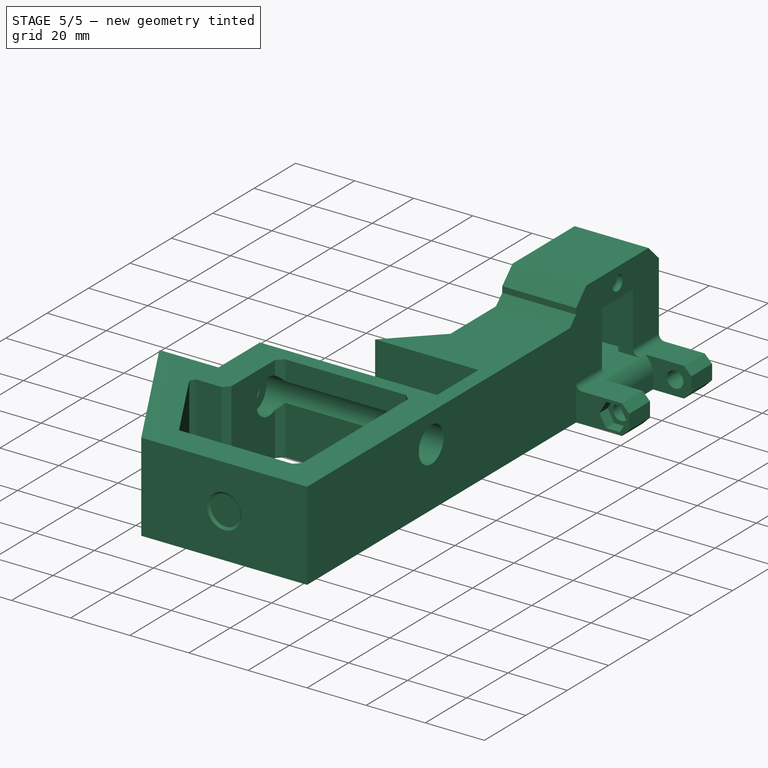
[diagram: stage 5 of 5 — iso view after this stage's code; geometry added in this stage tinted green]
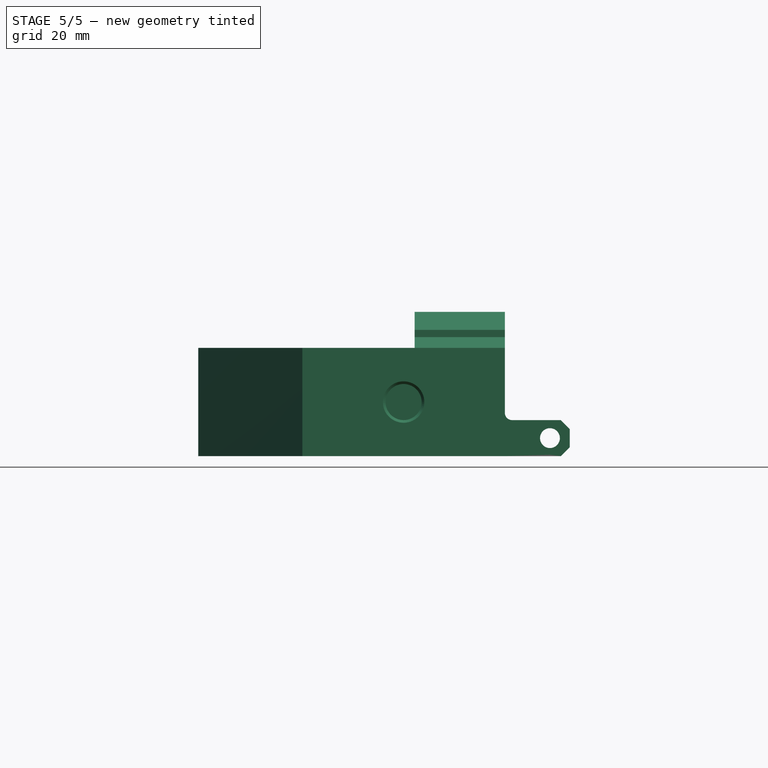
[diagram: stage 5 of 5 — front view after this stage's code; geometry added in this stage tinted green]
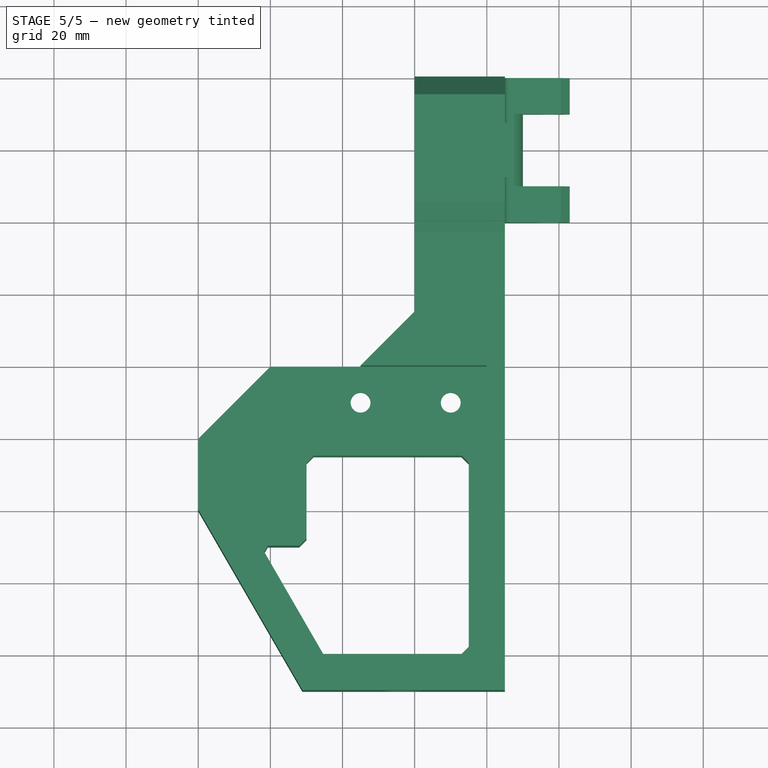
[diagram: stage 5 of 5 — top view after this stage's code; geometry added in this stage tinted green]
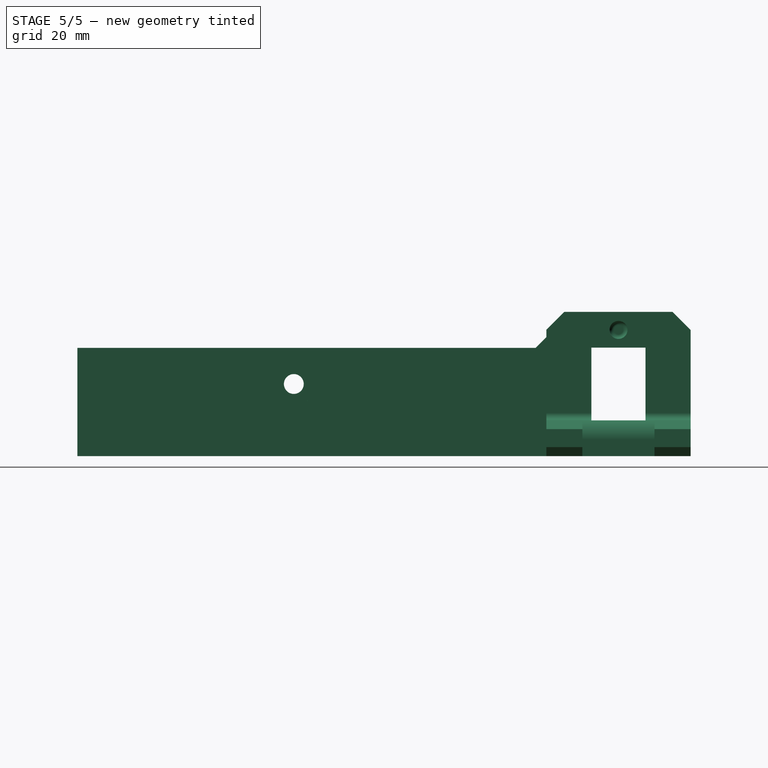
[diagram: stage 5 of 5 — right view after this stage's code; geometry added in this stage tinted green]
FEATURE [PartDesign::Plane] DatumPlane012  label="PrintPlaneOG"
  Length = 157.503
  MapMode = 5
  Placement = pos=(0,0,30) rot=(0,0,1;0rad)
  ResizeMode = 0
  Support = -> [Fillet004]
  Width = 199.503
FEATURE [PartDesign::Mirrored] Mirrored
  BaseFeature = -> Fillet004
  MirrorPlane = -> DatumPlane012
  Originals = -> [Pad,Pad001,Pocket016,Pocket,Pocket001,Pocket012,Pocket005,Pocket007,Pocket008,Pocket009,Pocket014,Pocket015,Pocket017,Pocket018,Fillet001,Chamfer,Chamfer001,Fillet,Pocket019,Pocket020,Chamfer003,Fillet002,Chamfer004,Chamfer005,Pocket021,Fillet003,Pad002,Pad003,Pocket022,Pocket023,Fillet004]
FEATURE [Sketcher::SketchObject] Sketch027
  FullyConstrained = false
  MapMode = 5
  Placement = pos=(0,0,30) rot=(0,0,1;0rad)
  Support = -> [DatumPlane012]
  sketch-geometry (4):
    g0: LineSegment StartX=-25.8032 StartY=-97.9912 StartZ=0 EndX=158.058 EndY=-97.9912 EndZ=0
    g1: LineSegment StartX=158.058 StartY=-97.9912 StartZ=0 EndX=158.058 EndY=130.099 EndZ=0
    g2: LineSegment StartX=158.058 StartY=130.099 StartZ=0 EndX=-25.8032 EndY=130.099 EndZ=0
    g3: LineSegment StartX=-25.8032 StartY=130.099 StartZ=0 EndX=-25.8032 EndY=-97.9912 EndZ=0
  constraints (8):
    c: Coincident(g0,g1)
    c: Coincident(g1,g2)
    c: Coincident(g2,g3)
    c: Coincident(g3,g0)
    c: Horizontal(g0)
    c: Horizontal(g2)
    c: Vertical(g1)
    c: Vertical(g3)
FEATURE [PartDesign::Pocket] Pocket024
  BaseFeature = -> Mirrored
  Direction = (1,1,1)
  Length = 5
  Length2 = 100
  Profile = -> Sketch027
  Type = 1
FEATURE [PartDesign::Plane] DatumPlane016  label="PrintPlane"
  Length = 157.503
  MapMode = 5
  Placement = pos=(0,0,30) rot=(1,0,0;3.14159rad)
  ResizeMode = 0
  Support = -> [Pocket024]
  Width = 199.503
FEATURE [PartDesign::Plane] DatumPlane017
  Length = 157.503
  MapMode = 5
  Placement = pos=(0,0,35) rot=(1,0,0;3.14159rad)
  ResizeMode = 0
  Support = -> [Pocket024]
  Width = 199.503
FEATURE [Sketcher::SketchObject] Sketch028
  ExternalGeometry = -> [Pocket024]
  FullyConstrained = true
  MapMode = 5
  Placement = pos=(0,0,35) rot=(1,0,0;3.14159rad)
  Support = -> [DatumPlane017]
  sketch-geometry (10):
    g0: LineSegment StartX=47.75 StartY=-7.25 StartZ=0 EndX=42.25 EndY=-7.25 EndZ=0
    g1: LineSegment StartX=42.25 StartY=-7.25 StartZ=0 EndX=42.25 EndY=-12.75 EndZ=0
    g2: LineSegment StartX=42.25 StartY=-12.75 StartZ=0 EndX=47.75 EndY=-12.75 EndZ=0
    g3: LineSegment StartX=47.75 StartY=-12.75 StartZ=0 EndX=47.75 EndY=-7.25 EndZ=0
    g4: Circle CenterX=45 CenterY=-10 CenterZ=0 NormalX=0 NormalY=0 NormalZ=1 AngleXU=0 Radius=3.88909
    g5: LineSegment StartX=72.75 StartY=-7.25 StartZ=0 EndX=67.25 EndY=-7.25 EndZ=0
    g6: LineSegment StartX=67.25 StartY=-7.25 StartZ=0 EndX=67.25 EndY=-12.75 EndZ=0
    g7: LineSegment StartX=67.25 StartY=-12.75 StartZ=0 EndX=72.75 EndY=-12.75 EndZ=0
    g8: LineSegment StartX=72.75 StartY=-12.75 StartZ=0 EndX=72.75 EndY=-7.25 EndZ=0
    g9: Circle CenterX=70 CenterY=-10 CenterZ=0 NormalX=0 NormalY=0 NormalZ=1 AngleXU=0 Radius=3.88909
  constraints (28):
    c: Coincident(g0,g1)
    c: Coincident(g1,g2)
    c: Coincident(g2,g3)
    c: Coincident(g3,g0)
    c: Equal(g0,g1)
    c: Equal(g0,g2)
    c: Equal(g0,g3)
    c: PointOnObject(g0,g4)
    c: PointOnObject(g1,g4)
    c: PointOnObject(g2,g4)
    c: PointOnObject(g3,g4)
    c: Coincident(g4,g-4)
    c: Coincident(g5,g6)
    c: Coincident(g6,g7)
    c: Coincident(g7,g8)
    c: Coincident(g8,g5)
    c: Equal(g5,g6)
    c: Equal(g5,g7)
    c: Equal(g5,g8)
    c: PointOnObject(g5,g9)
    c: PointOnObject(g6,g9)
    c: PointOnObject(g7,g9)
    c: PointOnObject(g8,g9)
    c: Coincident(g9,g-6)
    c: Horizontal(g5)
    c: Horizontal(g0)
    c: Tangent(g-3,g0)
    c: Tangent(g5,g-5)
FEATURE [PartDesign::Pocket] Pocket025  label="Mid-Air Hole Cleanup - Step #1"
  BaseFeature = -> Pocket024
  Direction = (1,1,1)
  Length = 0.8
  Length2 = 100
  Profile = -> Sketch028
  Type = 0
FEATURE [Sketcher::SketchObject] Sketch029
  ExternalGeometry = -> [Pocket025]
  FullyConstrained = true
  MapMode = 5
  Placement = pos=(0,0,35) rot=(1,0,0;3.14159rad)
  Support = -> [DatumPlane017]
  sketch-geometry (14):
    g0: LineSegment StartX=42.25 StartY=-4.66732 StartZ=0 EndX=42.25 EndY=-15.3327 EndZ=0
    g1: LineSegment StartX=42.25 StartY=-15.3327 StartZ=0 EndX=47.75 EndY=-15.3327 EndZ=0
    g2: LineSegment StartX=47.75 StartY=-15.3327 StartZ=0 EndX=47.75 EndY=-4.66732 EndZ=0
    g3: LineSegment StartX=47.75 StartY=-4.66732 StartZ=0 EndX=42.25 EndY=-4.66732 EndZ=0
    g4: LineSegment StartX=42.25 StartY=-4.66732 StartZ=0 EndX=47.75 EndY=-15.3327 EndZ=0
    g5: ArcOfCircle CenterX=45 CenterY=-10 CenterZ=0 NormalX=0 NormalY=0 NormalZ=1 AngleXU=0 Radius=6 StartAngle=1.09468 EndAngle=2.04692
    g6: ArcOfCircle CenterX=45 CenterY=-10 CenterZ=0 NormalX=0 NormalY=0 NormalZ=1 AngleXU=0 Radius=6 StartAngle=4.23627 EndAngle=5.18851
    g7: LineSegment StartX=67.25 StartY=-4.66732 StartZ=0 EndX=67.25 EndY=-15.3327 EndZ=0
    g8: LineSegment StartX=67.25 StartY=-15.3327 StartZ=0 EndX=72.75 EndY=-15.3327 EndZ=0
    g9: LineSegment StartX=72.75 StartY=-15.3327 StartZ=0 EndX=72.75 EndY=-4.66732 EndZ=0
    g10: LineSegment StartX=72.75 StartY=-4.66732 StartZ=0 EndX=67.25 EndY=-4.66732 EndZ=0
    g11: LineSegment StartX=67.25 StartY=-4.66732 StartZ=0 EndX=72.75 EndY=-15.3327 EndZ=0
    g12: ArcOfCircle CenterX=70 CenterY=-10 CenterZ=0 NormalX=0 NormalY=0 NormalZ=1 AngleXU=0 Radius=6 StartAngle=1.09468 EndAngle=2.04692
    g13: ArcOfCircle CenterX=70 CenterY=-10 CenterZ=0 NormalX=0 NormalY=0 NormalZ=1 AngleXU=0 Radius=6 StartAngle=4.23627 EndAngle=5.18851
  constraints (35):
    c: Coincident(g0,g1)
    c: Coincident(g1,g2)
    c: Coincident(g2,g3)
    c: Coincident(g3,g0)
    c: Coincident(g4,g0)
    c: Coincident(g4,g1)
    c: Symmetric(g4,g4,g-3)
    c: Vertical(g0)
    c: Horizontal(g3)
    c: PointOnObject(g-6,g0)
    c: PointOnObject(g4,g-3)
    c: Coincident(g5,g3)
    c: Coincident(g3,g5)
    c: Coincident(g-3,g5)
    c: Coincident(g6,g1)
    c: Coincident(g6,g1)
    c: Coincident(g6,g-3)
    c: Coincident(g7,g8)
    c: Coincident(g8,g9)
    c: Coincident(g9,g10)
    c: Coincident(g10,g7)
    c: Coincident(g11,g7)
    c: Coincident(g11,g8)
    c: Vertical(g7)
    c: Horizontal(g10)
    c: Coincident(g12,g10)
    c: Coincident(g10,g12)
    c: Coincident(g13,g8)
    c: Coincident(g13,g8)
    c: Coincident(g13,g-4)
    c: PointOnObject(g-5,g7)
    c: PointOnObject(g-10,g9)
    c: PointOnObject(g8,g-4)
    c: PointOnObject(g10,g-4)
    c: Coincident(g12,g13)
FEATURE [PartDesign::Pocket] Pocket026  label="Mid-Air Hole Cleanup - Step #2"
  BaseFeature = -> Pocket025
  Direction = (1,1,1)
  Length = 0.4
  Length2 = 100
  Profile = -> Sketch029
  Type = 0
FEATURE [Sketcher::SketchObject] Sketch030
  FullyConstrained = true
  MapMode = 5
  Placement = pos=(0,60,0) rot=(1,0,0;1.5708rad)
  Support = -> [DatumPlane007]
  sketch-geometry (7):
    g0: LineSegment StartX=101.5 StartY=32.6906 StartZ=0 EndX=101.5 EndY=37.3094 EndZ=0
    g1: LineSegment StartX=101.5 StartY=37.3094 StartZ=0 EndX=97.5 EndY=39.6188 EndZ=0
    g2: LineSegment StartX=97.5 StartY=39.6188 StartZ=0 EndX=93.5 EndY=37.3094 EndZ=0
    g3: LineSegment StartX=93.5 StartY=37.3094 StartZ=0 EndX=93.5 EndY=32.6906 EndZ=0
    g4: LineSegment StartX=93.5 StartY=32.6906 StartZ=0 EndX=97.5 EndY=30.3812 EndZ=0
    g5: LineSegment StartX=97.5 StartY=30.3812 StartZ=0 EndX=101.5 EndY=32.6906 EndZ=0
    g6: Circle CenterX=97.5 CenterY=35 CenterZ=0 NormalX=0 NormalY=0 NormalZ=1 AngleXU=0 Radius=4.6188
  constraints (17):
    c: Coincident(g0,g1)
    c: Coincident(g1,g2)
    c: Coincident(g2,g3)
    c: Coincident(g3,g4)
    c: Coincident(g4,g5)
    c: Coincident(g5,g0)
    c: Equal(g0, g1-g5) x5
    c: PointOnObject(g0,g6)
    c: PointOnObject(g1,g6)
    c: PointOnObject(g2,g6)
    c: PointOnObject(g3,g6)
    c: PointOnObject(g4,g6)
    c: PointOnObject(g5,g6)
    c: Vertical(g0)
    c: Distance(g0,g2) = 8
    c: DistanceY(g-1,g6) = 35
    c: DistanceX(g-1,g6) = 97.5
FEATURE [Sketcher::SketchObject] Sketch031
  FullyConstrained = true
  MapMode = 5
  Placement = pos=(0,60,0) rot=(1,0,0;1.5708rad)
  Support = -> [DatumPlane007]
  sketch-geometry (7):
    g0: LineSegment StartX=102.119 StartY=35 StartZ=0 EndX=99.8094 EndY=39 EndZ=0
    g1: LineSegment StartX=99.8094 StartY=39 StartZ=0 EndX=95.1906 EndY=39 EndZ=0
    g2: LineSegment StartX=95.1906 StartY=39 StartZ=0 EndX=92.8812 EndY=35 EndZ=0
    g3: LineSegment StartX=92.8812 StartY=35 StartZ=0 EndX=95.1906 EndY=31 EndZ=0
    g4: LineSegment StartX=95.1906 StartY=31 StartZ=0 EndX=99.8094 EndY=31 EndZ=0
    g5: LineSegment StartX=99.8094 StartY=31 StartZ=0 EndX=102.119 EndY=35 EndZ=0
    g6: Circle CenterX=97.5 CenterY=35 CenterZ=0 NormalX=0 NormalY=0 NormalZ=1 AngleXU=0 Radius=4.6188
  constraints (17):
    c: Coincident(g0,g1)
    c: Coincident(g1,g2)
    c: Coincident(g2,g3)
    c: Coincident(g3,g4)
    c: Coincident(g4,g5)
    c: Coincident(g5,g0)
    c: Equal(g0, g1-g5) x5
    c: PointOnObject(g0,g6)
    c: PointOnObject(g1,g6)
    c: PointOnObject(g2,g6)
    c: PointOnObject(g3,g6)
    c: PointOnObject(g4,g6)
    c: PointOnObject(g5,g6)
    c: Distance(g0,g2) = 8
    c: DistanceY(g-1,g6) = 35
    c: DistanceX(g-1,g6) = 97.5
    c: Horizontal(g1)
FEATURE [PartDesign::Pad] Pad004  label="Fill in OG M5 nut recess on tensioner mounting post"
  BaseFeature = -> Pocket026
  Direction = (0,-1,2e-16)
  Length = 4
  Length2 = 10
  Profile = -> Sketch030
  ReferenceAxis = -> Sketch030 [N_Axis]
  Reversed = true
  Type = 0
FEATURE [PartDesign::Pocket] Pocket027  label="Rotated M5 nut recess for tensioner mounting post"
  BaseFeature = -> Pad004
  Direction = (0,1,-2e-16)
  Length = 4
  Length2 = 5
  Profile = -> Sketch031
  ReferenceAxis = -> Sketch031 [N_Axis]
  Type = 0
FEATURE [PartDesign::Plane] DatumPlane019
  Length = 150.054
  MapMode = 5
  Placement = pos=(0,-70,0) rot=(1,0,0;1.5708rad)
  ResizeMode = 0
  Support = -> [Pocket027]
  Width = 117.054
FEATURE [Sketcher::SketchObject] Sketch033
  FullyConstrained = true
  MapMode = 5
  Placement = pos=(0,-70,0) rot=(1,0,0;1.5708rad)
  Support = -> [DatumPlane019]
  sketch-geometry (1):
    g0: Circle CenterX=56.9338 CenterY=45 CenterZ=0 NormalX=0 NormalY=0 NormalZ=1 AngleXU=0 Radius=5
  constraints (3):
    c: DistanceY(g-1,g0) = 45
    c: DistanceX(g-1,g0) = 56.9338
    c: Diameter(g0) = 10
FEATURE [PartDesign::Pocket] Pocket028  label="Rubber Foot Pocket"
  BaseFeature = -> Pocket027
  Direction = (0,1,-2e-16)
  Length = 0.75
  Length2 = 5
  Profile = -> Sketch033
  ReferenceAxis = -> Sketch033 [N_Axis]
  Type = 0
FEATURE [PartDesign::Chamfer] Chamfer006  label="Rubber Foot Pocket Chamfer"
  Angle = 45
  Base = -> Pocket028 [Edge131]
  BaseFeature = -> Pocket028
  ChamferType = 0
  FlipDirection = false
  Size = 0.74
  Size2 = 1
  SupportTransform = false
  UseAllEdges = false
FEATURE [PartDesign::Body] Body
  Group = -> [Sketch,DatumPlane012,Pad,Sketch001,Pad001,Sketch019,Pocket016,Sketch002,DatumPlane003,Pocket,Sketch003,DatumPlane004,Pocket001,Sketch015,Pocket012,Sketch007,DatumPlane006,Pocket005,Sketch009,Pocket007,Sketch010,Pocket008,Sketch011,DatumPlane005,Pocket009,Sketch017,Pocket014,Sketch018,Pocket015,DatumPlane,Sketch020,Pocket017,Sketch021,Pocket018,Fillet001,Chamfer,Chamfer001,Fillet,DatumPlane007,+40 more]
  Origin = -> Origin
  Tip = -> Chamfer006
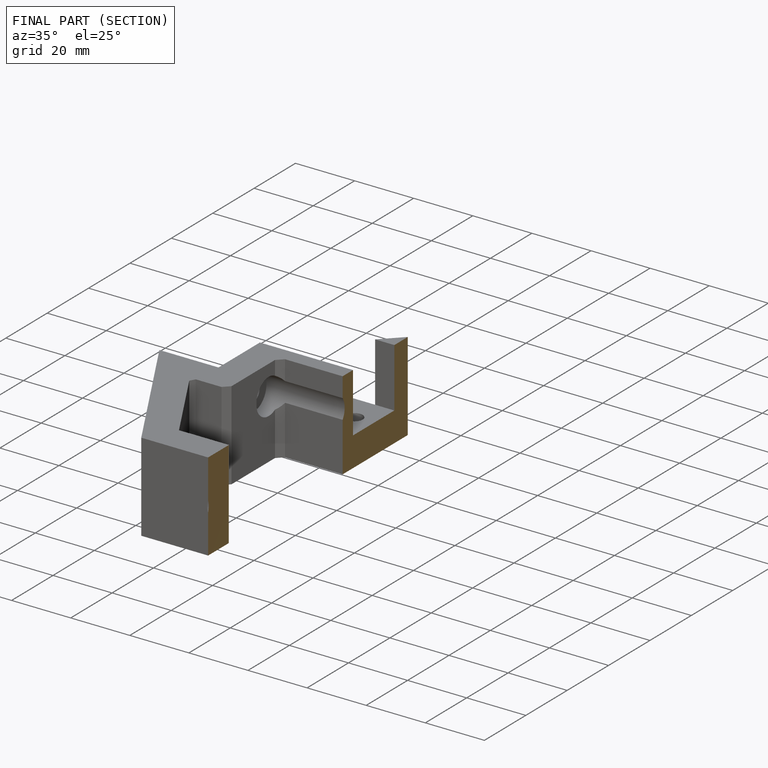
[diagram: finished part — half-section view (interior)]
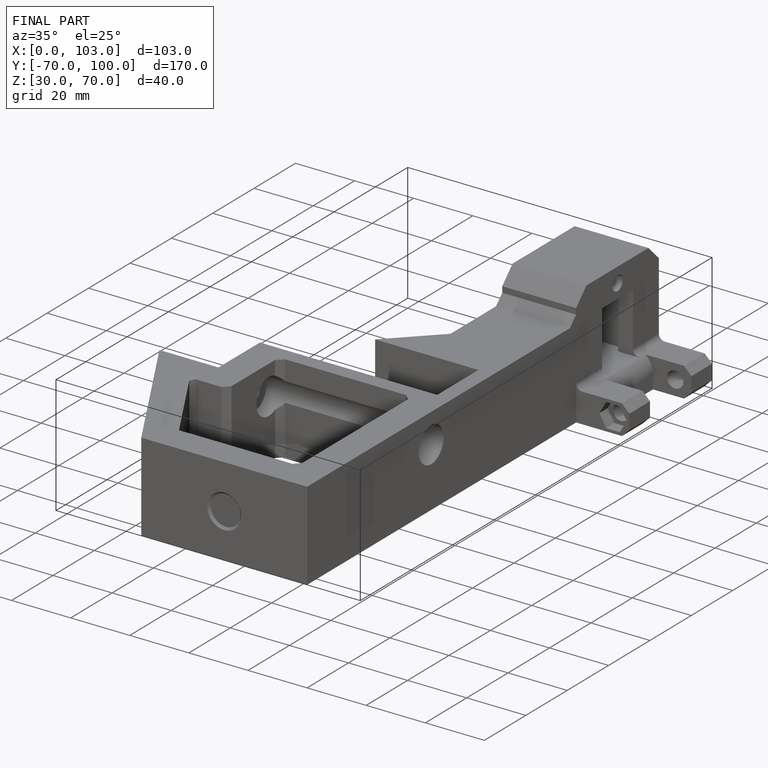
[diagram: finished part — iso view with bounding-box wireframe]
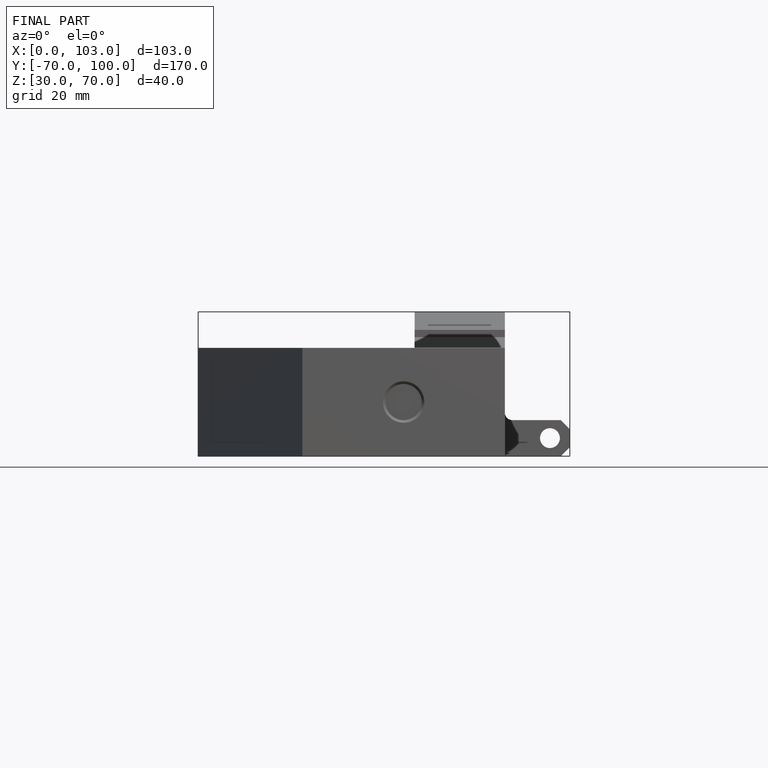
[diagram: finished part — front view with bounding-box wireframe]
